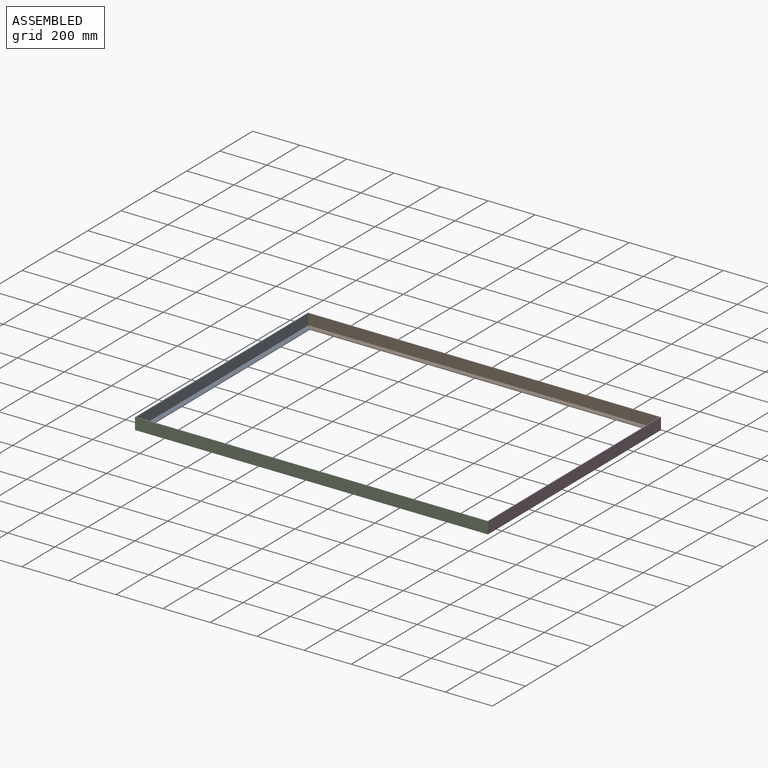
[diagram: assembled view]
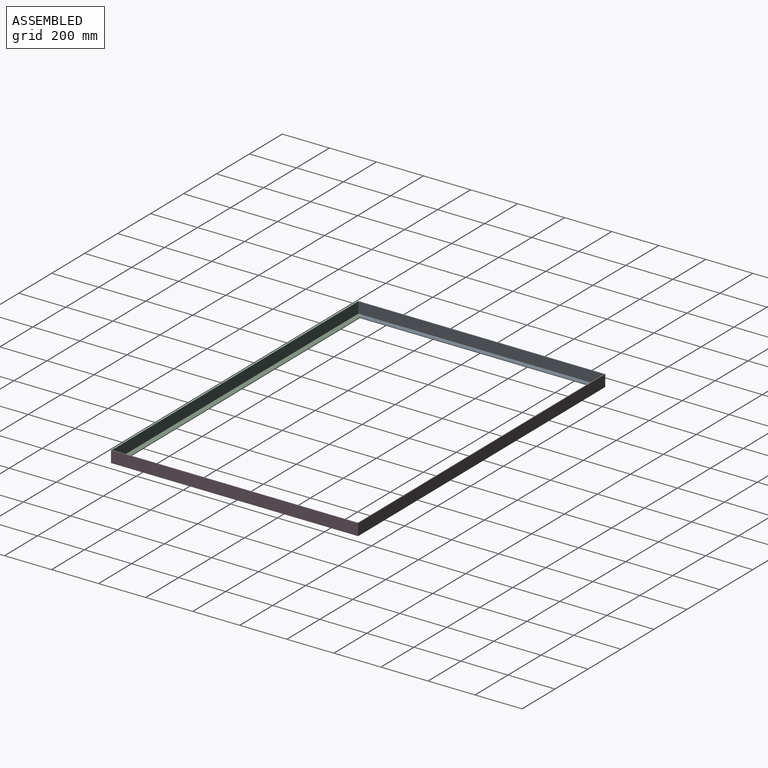
[diagram: assembled view, second angle]
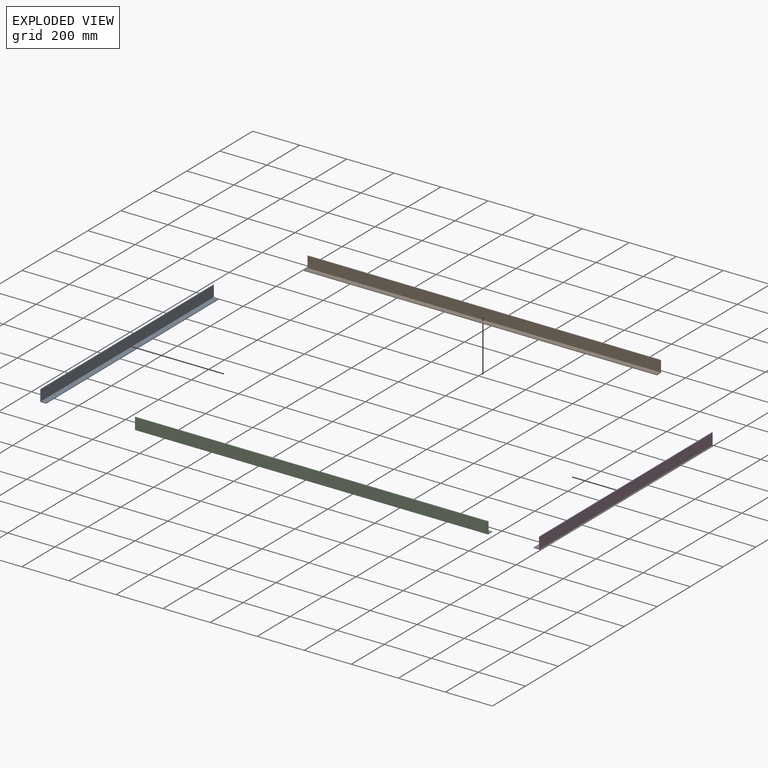
[diagram: exploded view]
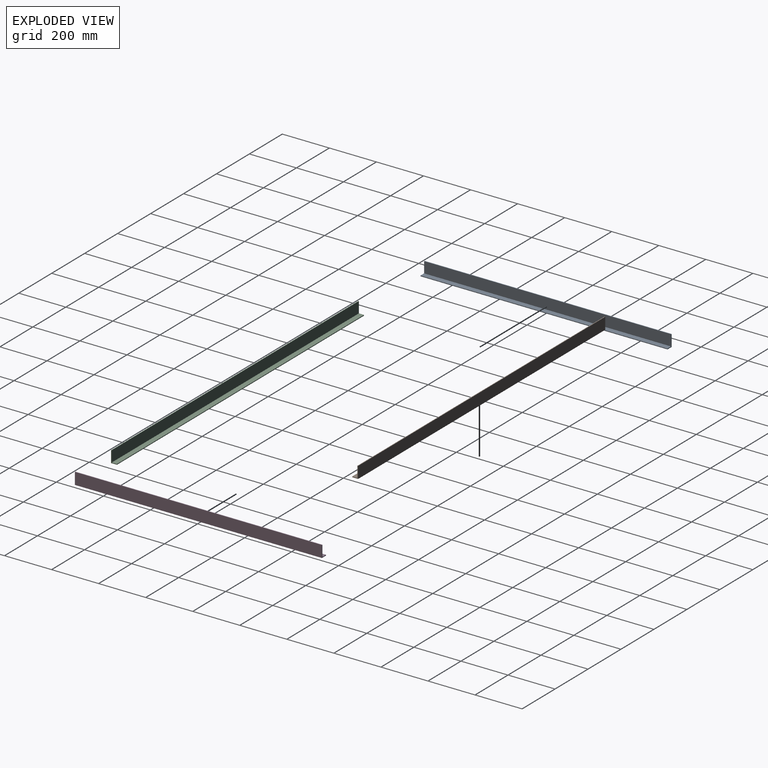
[diagram: exploded view, second angle]
ASSEMBLY  parts=4 mates=9
PART A: 8 faces, bbox 50x1050x25 mm
  f0: plane 1050x22mm, normal (1,0,0), area 23100mm2, adj f1,f5,f6,f7
  f1: plane 1050x3mm, normal (0,0,1), area 3150mm2, adj f0,f2,f6,f7
  f2: plane 1050x25mm, normal (-1,0,0), area 26250mm2, adj f1,f3,f6,f7
  f3: plane 1050x50mm, normal (0,0,-1), area 52500mm2, adj f2,f4,f6,f7
  f4: plane 1050x3mm, normal (1,0,0), area 3150mm2, adj f3,f5,f6,f7
  f5: plane 1050x47mm, normal (0,0,1), area 49350mm2, adj f0,f4,f6,f7
  f6: plane 50x25mm, normal (0,1,0), area 216mm2, adj f0,f1,f2,f3,f4,f5
  f7: plane 50x25mm, normal (0,-1,0), area 216mm2, adj f0,f1,f2,f3,f4,f5
PART B: 8 faces, bbox 1500x50x25 mm
  f0: plane 1500x47mm, normal (0,0,1), area 70500mm2, adj f1,f5,f6,f7
  f1: plane 1500x22mm, normal (0,1,0), area 33000mm2, adj f0,f2,f6,f7
  f2: plane 1500x3mm, normal (0,0,1), area 4500mm2, adj f1,f3,f6,f7
  f3: plane 1500x25mm, normal (0,-1,0), area 37500mm2, adj f2,f4,f6,f7
  f4: plane 1500x50mm, normal (0,0,-1), area 75000mm2, adj f3,f5,f6,f7
  f5: plane 1500x3mm, normal (0,1,0), area 4500mm2, adj f0,f4,f6,f7
  f6: plane 50x25mm, normal (-1,0,0), area 216mm2, adj f0,f1,f2,f3,f4,f5
  f7: plane 50x25mm, normal (1,0,0), area 216mm2, adj f0,f1,f2,f3,f4,f5
PART C: same geometry as B
PART D: same geometry as A
PLACE A rot(axis=(-0.71,0,-0.71),180deg) t=(-1713.79,-249.76,1425.75)mm
PLACE B rot(axis=(1,0,0),90deg) t=(-589.45,-1002.65,-114.25)mm
PLACE C rot(axis=(0,-0.71,-0.71),180deg) t=(-2089.45,-546.87,-114.25)mm
PLACE D rot(axis=(0,-1,0),90deg) t=(-965.1,-1299.76,1425.75)mm
MATE planar A.f2 <-> C.f3  axis (0,0,-1) through (-2076.95,-774.76,220.25)mm
MATE planar B.f4 <-> D.f6  axis (0,1,0) through (-1339.45,-249.76,245.25)mm
MATE planar A.f2 <-> B.f3  axis (0,0,-1) through (-2076.95,-774.76,220.25)mm
MATE planar D.f3 <-> B.f7  axis (1,0,0) through (-589.45,-774.76,245.25)mm
MATE planar C.f4 <-> A.f6  axis (0,-1,0) through (-1339.45,-1299.76,245.25)mm
MATE planar B.f3 <-> D.f2  axis (0,0,-1) through (-1339.45,-262.26,220.25)mm
MATE planar B.f4 <-> A.f7  axis (0,1,0) through (-1339.45,-249.76,245.25)mm
MATE planar A.f3 <-> B.f6  axis (-1,0,0) through (-2089.45,-774.76,245.25)mm
MATE planar A.f3 <-> C.f7  axis (-1,0,0) through (-2089.45,-774.76,245.25)mm
